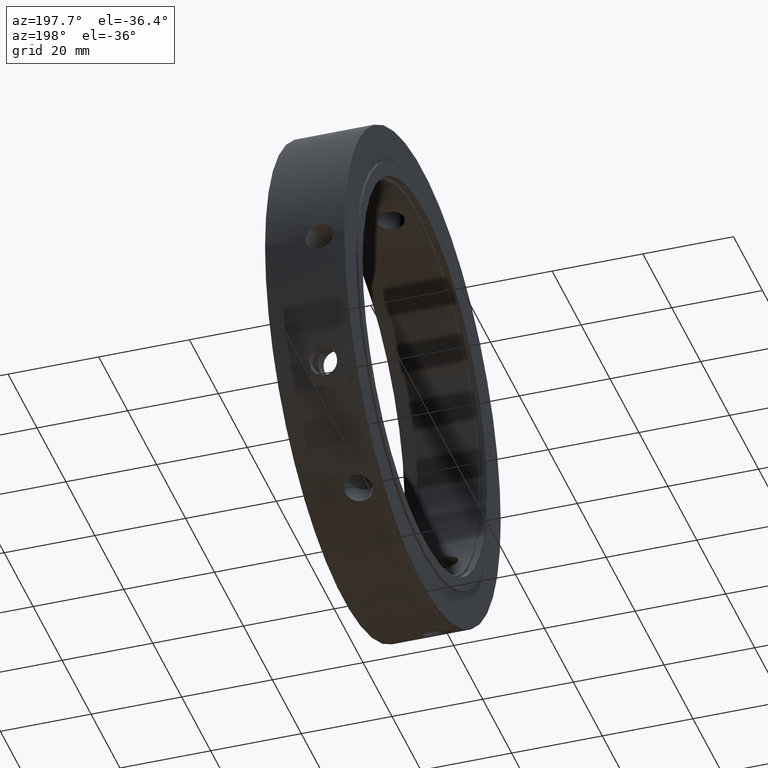
[diagram: clean part render]
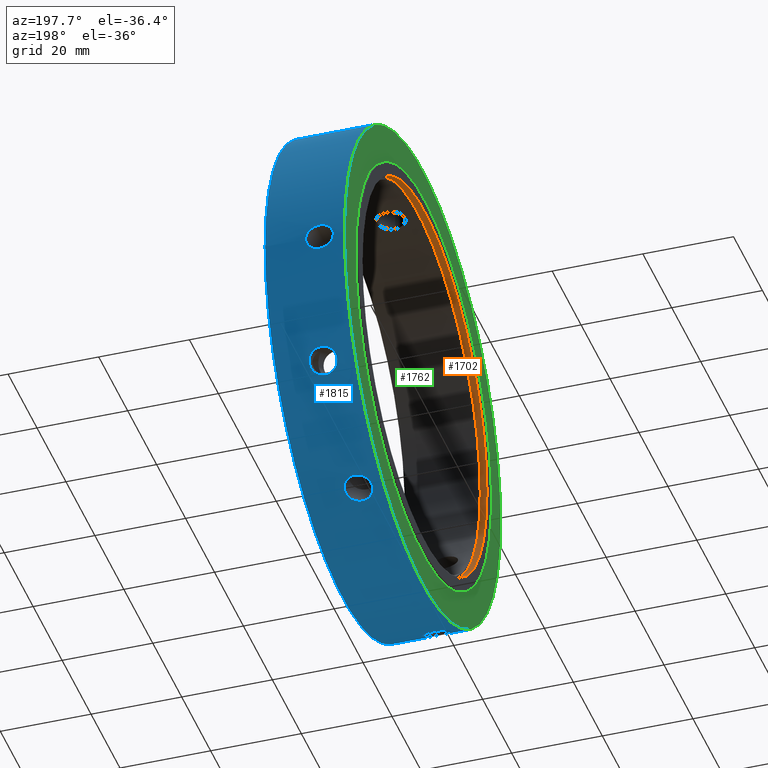
[diagram: same view with three faces highlighted in distinct colors, each labeled with its STEP entity id]
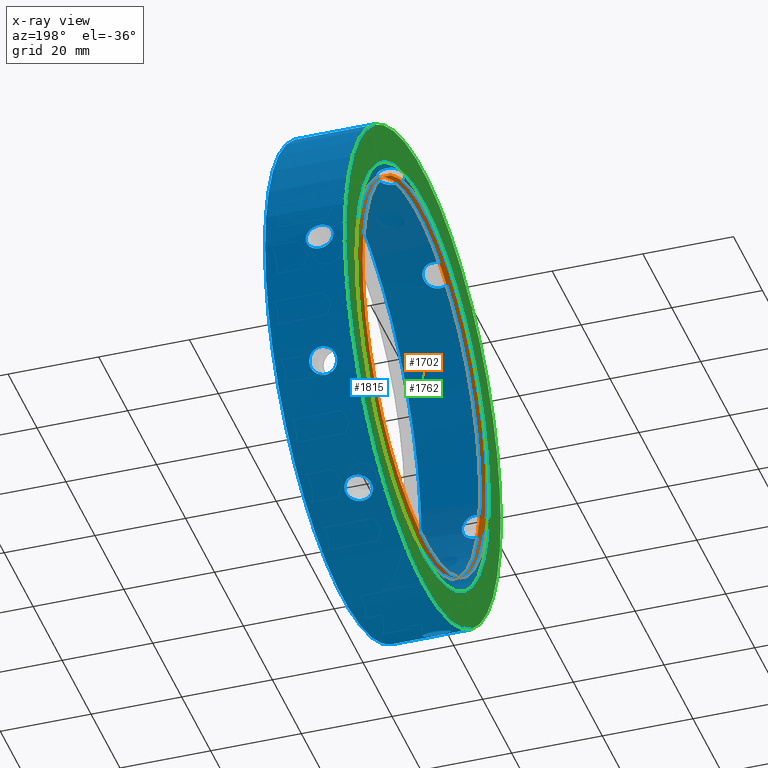
[diagram: x-ray of the same camera — body ghosted, the three highlighted faces saturated]
A machine part, auxiliary view with three faces highlighted in distinct colors.
The next image is the same camera in x-ray (body ghosted, the three faces saturated) — at least one of them is partly hidden behind the body in this view.
Their STEP definitions:

[orange] entity #1702 — the highlighted cylindrical surface (bore or boss wall) has radius 43 mm, axis along (1, 0, 0).
#1660=CARTESIAN_POINT('',(1.499999999999988,43.0,0.0));
#1661=VERTEX_POINT('',#1660);
#1662=CARTESIAN_POINT('',(1.499999999999988,0.0,0.0));
#1663=DIRECTION('',(1.0,0.0,0.0));
#1664=DIRECTION('',(0.0,1.0,0.0));
#1665=AXIS2_PLACEMENT_3D('',#1662,#1663,#1664);
#1666=CIRCLE('',#1665,43.0);
#1667=EDGE_CURVE('',#1661,#1661,#1666,.T.);
#1683=CARTESIAN_POINT('',(0.749999999999988,0.0,0.0));
#1684=DIRECTION('',(1.0,0.0,0.0));
#1685=DIRECTION('',(0.0,1.0,0.0));
#1686=AXIS2_PLACEMENT_3D('',#1683,#1684,#1685);
#1687=CYLINDRICAL_SURFACE('',#1686,43.0);
#1688=CARTESIAN_POINT('',(-1.221245E-014,43.0,0.0));
#1689=VERTEX_POINT('',#1688);
#1690=CARTESIAN_POINT('',(-1.221245E-014,0.0,0.0));
#1691=DIRECTION('',(1.0,0.0,0.0));
#1692=DIRECTION('',(0.0,1.0,0.0));
#1693=AXIS2_PLACEMENT_3D('',#1690,#1691,#1692);
#1694=CIRCLE('',#1693,43.0);
#1695=EDGE_CURVE('',#1689,#1689,#1694,.T.);
#1696=ORIENTED_EDGE('',*,*,#1695,.F.);
#1697=EDGE_LOOP('',(#1696));
#1698=FACE_OUTER_BOUND('',#1697,.T.);
#1699=ORIENTED_EDGE('',*,*,#1667,.T.);
#1700=EDGE_LOOP('',(#1699));
#1701=FACE_BOUND('',#1700,.T.);
#1702=ADVANCED_FACE('',(#1698,#1701),#1687,.F.);

[blue] entity #1815 — the highlighted cylindrical surface (bore or boss wall) has radius 54 mm, axis along (1, 0, 0).
#534=CARTESIAN_POINT('',(2.949999999999986,27.000000000000046,46.76537180435966));
#535=VERTEX_POINT('',#534);
#536=CARTESIAN_POINT('',(9.049999999999985,27.000000000000046,46.76537180435966));
#537=VERTEX_POINT('',#536);
#538=CARTESIAN_POINT('',(2.949999999999986,27.000000000000046,46.76537180435966));
#539=CARTESIAN_POINT('',(2.949999999999986,27.331732920382429,46.573845713477837));
#540=CARTESIAN_POINT('',(3.026569748587527,27.68328216063766,46.365689013395716));
#541=CARTESIAN_POINT('',(3.33785882363115,28.325918588300127,45.975902003140206));
#542=CARTESIAN_POINT('',(3.572573640183091,28.617127802573094,45.794469309906304));
#543=CARTESIAN_POINT('',(4.114075087771311,29.075259816808536,45.504974339959531));
#544=CARTESIAN_POINT('',(4.456985969656983,29.2727643782668,45.377632783046863));
#545=CARTESIAN_POINT('',(5.208418811643451,29.534215774619632,45.207901852997665));
#546=CARTESIAN_POINT('',(5.616947686389779,29.598275949281781,45.16571776059989));
#547=CARTESIAN_POINT('',(6.383052313610191,29.598275949281778,45.16571776059989));
#548=CARTESIAN_POINT('',(6.791581188356518,29.534215774619632,45.207901852997665));
#549=CARTESIAN_POINT('',(7.54301403034299,29.2727643782668,45.377632783046863));
#550=CARTESIAN_POINT('',(7.885924912228659,29.075259816808536,45.504974339959531));
#551=CARTESIAN_POINT('',(8.427426359816879,28.617127802573094,45.794469309906304));
#552=CARTESIAN_POINT('',(8.66214117636882,28.325918588300123,45.97590200314022));
#553=CARTESIAN_POINT('',(8.973430251412445,27.683282160637653,46.365689013395723));
#554=CARTESIAN_POINT('',(9.049999999999985,27.331732920382429,46.573845713477837));
#555=CARTESIAN_POINT('',(9.049999999999985,27.000000000000046,46.76537180435966));
#556=B_SPLINE_CURVE_WITH_KNOTS('',3,(#538,#539,#540,#541,#542,#543,#544,#545,#546,#547,#548,#549,#550,#551,#552,#553,#554,#555),.UNSPECIFIED.,.F.,.U.,(4,2,2,2,2,2,2,2,4),(0.459662697224322,0.57457835175342,0.689494006282519,0.804409700365581,0.919325394448643,1.034241088531705,1.149156782614767,1.264072437143866,1.378988091672964),.UNSPECIFIED.);
#557=EDGE_CURVE('',#535,#537,#556,.T.);
#559=CARTESIAN_POINT('',(9.049999999999985,27.000000000000046,46.765371804359653));
#560=CARTESIAN_POINT('',(9.049999999999985,26.668267079617664,46.956897895241482));
#561=CARTESIAN_POINT('',(8.973430251412445,26.312223469250995,47.157270117942574));
#562=CARTESIAN_POINT('',(8.662141176368824,25.653339802473308,47.518916084567806));
#563=CARTESIAN_POINT('',(8.427426359816883,25.350609873919232,47.680394315327355));
#564=CARTESIAN_POINT('',(7.885924912228663,24.870833868559785,47.932400792968799));
#565=CARTESIAN_POINT('',(7.543014030342988,24.66180056458683,48.039773982098609));
#566=CARTESIAN_POINT('',(6.791581188356522,24.384083569179854,48.181332068170484));
#567=CARTESIAN_POINT('',(6.383052313610191,24.315520986196709,48.215717760599887));
#568=CARTESIAN_POINT('',(5.999999999999986,24.315520986196709,48.215717760599887));
#569=CARTESIAN_POINT('',(5.616947686389779,24.315520986196709,48.215717760599887));
#570=CARTESIAN_POINT('',(5.208418811643448,24.38408356917985,48.181332068170484));
#571=CARTESIAN_POINT('',(4.456985969656981,24.661800564586827,48.039773982098609));
#572=CARTESIAN_POINT('',(4.114075087771311,24.870833868559789,47.932400792968799));
#573=CARTESIAN_POINT('',(3.57257364018309,25.350609873919232,47.680394315327355));
#574=CARTESIAN_POINT('',(3.33785882363115,25.653339802473308,47.518916084567813));
#575=CARTESIAN_POINT('',(3.026569748587527,26.312223469250995,47.157270117942581));
#576=CARTESIAN_POINT('',(2.949999999999986,26.668267079617664,46.956897895241489));
#577=CARTESIAN_POINT('',(2.949999999999986,27.000000000000046,46.76537180435966));
#578=B_SPLINE_CURVE_WITH_KNOTS('',3,(#559,#560,#561,#562,#563,#564,#565,#566,#567,#568,#569,#570,#571,#572,#573,#574,#575,#576,#577),.UNSPECIFIED.,.F.,.U.,(4,2,2,2,3,2,2,2,4),(1.378988091672964,1.493903746202063,1.608819400731162,1.723735094814224,1.838650788897286,1.953566482980348,2.06848217706341,2.183397831592509,2.298313486121608),.UNSPECIFIED.);
#579=EDGE_CURVE('',#537,#535,#578,.T.);
#646=CARTESIAN_POINT('',(2.949999999999986,54.0,-3.597123E-014));
#647=VERTEX_POINT('',#646);
#648=CARTESIAN_POINT('',(9.049999999999985,54.0,-3.108624E-014));
#649=VERTEX_POINT('',#648);
#650=CARTESIAN_POINT('',(2.949999999999986,54.0,-2.838008E-014));
#651=CARTESIAN_POINT('',(2.949999999999986,54.0,-0.383052181763691));
#652=CARTESIAN_POINT('',(3.026569748587529,53.995505629888562,-0.791581104546894));
#653=CARTESIAN_POINT('',(3.337858823631151,53.979258390773339,-1.543014081427626));
#654=CARTESIAN_POINT('',(3.57257364018309,53.967737676492234,-1.885925005421074));
#655=CARTESIAN_POINT('',(4.114075087771311,53.946093685368233,-2.427426453009294));
#656=CARTESIAN_POINT('',(4.456985969656983,53.934564942853534,-2.662141199051786));
#657=CARTESIAN_POINT('',(5.208418811643451,53.91829934379939,-2.973430215172854));
#658=CARTESIAN_POINT('',(5.616947686389779,53.913796935478402,-3.050000000000028));
#659=CARTESIAN_POINT('',(6.383052313610191,53.913796935478402,-3.050000000000028));
#660=CARTESIAN_POINT('',(6.791581188356518,53.918299343799404,-2.973430215172855));
#661=CARTESIAN_POINT('',(7.543014030342986,53.934564942853541,-2.662141199051788));
#662=CARTESIAN_POINT('',(7.885924912228659,53.946093685368233,-2.427426453009294));
#663=CARTESIAN_POINT('',(8.427426359816879,53.967737676492234,-1.885925005421074));
#664=CARTESIAN_POINT('',(8.662141176368818,53.979258390773339,-1.543014081427627));
#665=CARTESIAN_POINT('',(8.973430251412442,53.995505629888562,-0.791581104546896));
#666=CARTESIAN_POINT('',(9.049999999999985,54.0,-0.383052181763692));
#667=CARTESIAN_POINT('',(9.049999999999985,54.0,-2.928213E-014));
#668=B_SPLINE_CURVE_WITH_KNOTS('',3,(#650,#651,#652,#653,#654,#655,#656,#657,#658,#659,#660,#661,#662,#663,#664,#665,#666,#667),.UNSPECIFIED.,.F.,.U.,(4,2,2,2,2,2,2,2,4),(0.459662697224322,0.57457835175342,0.689494006282519,0.804409700365581,0.919325394448643,1.034241088531705,1.149156782614767,1.264072437143866,1.378988091672965),.UNSPECIFIED.);
#669=EDGE_CURVE('',#647,#649,#668,.T.);
#671=CARTESIAN_POINT('',(9.049999999999987,54.0,-2.955969E-014));
#672=CARTESIAN_POINT('',(9.049999999999987,54.0,0.383052181763633));
#673=CARTESIAN_POINT('',(8.973430251412442,53.995505629888562,0.791581104546837));
#674=CARTESIAN_POINT('',(8.66214117636882,53.979258390773339,1.543014081427568));
#675=CARTESIAN_POINT('',(8.427426359816881,53.967737676492234,1.885925005421016));
#676=CARTESIAN_POINT('',(7.88592491222866,53.946093685368233,2.427426453009236));
#677=CARTESIAN_POINT('',(7.543014030342988,53.934564942853534,2.662141199051729));
#678=CARTESIAN_POINT('',(6.791581188356521,53.91829934379939,2.973430215172797));
#679=CARTESIAN_POINT('',(6.383052313610191,53.913796935478402,3.049999999999971));
#680=CARTESIAN_POINT('',(5.999999999999986,53.913796935478402,3.049999999999971));
#681=CARTESIAN_POINT('',(5.616947686389779,53.913796935478402,3.049999999999971));
#682=CARTESIAN_POINT('',(5.208418811643451,53.91829934379939,2.973430215172797));
#683=CARTESIAN_POINT('',(4.456985969656983,53.934564942853534,2.662141199051729));
#684=CARTESIAN_POINT('',(4.114075087771312,53.946093685368233,2.427426453009237));
#685=CARTESIAN_POINT('',(3.572573640183091,53.967737676492227,1.885925005421017));
#686=CARTESIAN_POINT('',(3.337858823631152,53.979258390773339,1.543014081427569));
#687=CARTESIAN_POINT('',(3.026569748587529,53.995505629888562,0.791581104546838));
#688=CARTESIAN_POINT('',(2.949999999999986,54.0,0.383052181763635));
#689=CARTESIAN_POINT('',(2.949999999999986,54.0,-2.831069E-014));
#690=B_SPLINE_CURVE_WITH_KNOTS('',3,(#671,#672,#673,#674,#675,#676,#677,#678,#679,#680,#681,#682,#683,#684,#685,#686,#687,#688,#689),.UNSPECIFIED.,.F.,.U.,(4,2,2,2,3,2,2,2,4),(1.378988091672965,1.493903746202064,1.608819400731163,1.723735094814225,1.838650788897287,1.953566482980349,2.068482177063411,2.183397831592509,2.298313486121608),.UNSPECIFIED.);
#691=EDGE_CURVE('',#649,#647,#690,.T.);
#758=CARTESIAN_POINT('',(2.949999999999986,26.999999999999989,-46.765371804359702));
#759=VERTEX_POINT('',#758);
#760=CARTESIAN_POINT('',(9.049999999999985,26.999999999999993,-46.765371804359702));
#761=VERTEX_POINT('',#760);
#762=CARTESIAN_POINT('',(2.949999999999986,26.999999999999993,-46.765371804359702));
#763=CARTESIAN_POINT('',(2.949999999999986,26.668267079617607,-46.956897895241525));
#764=CARTESIAN_POINT('',(3.026569748587528,26.312223469250942,-47.157270117942609));
#765=CARTESIAN_POINT('',(3.33785882363115,25.653339802473258,-47.518916084567834));
#766=CARTESIAN_POINT('',(3.572573640183091,25.350609873919183,-47.680394315327376));
#767=CARTESIAN_POINT('',(4.11407508777131,24.870833868559735,-47.932400792968821));
#768=CARTESIAN_POINT('',(4.45698596965698,24.66180056458677,-48.039773982098652));
#769=CARTESIAN_POINT('',(5.208418811643451,24.38408356917979,-48.181332068170519));
#770=CARTESIAN_POINT('',(5.616947686389779,24.315520986196653,-48.215717760599915));
#771=CARTESIAN_POINT('',(6.383052313610191,24.315520986196653,-48.215717760599915));
#772=CARTESIAN_POINT('',(6.791581188356517,24.38408356917979,-48.181332068170519));
#773=CARTESIAN_POINT('',(7.543014030342985,24.66180056458677,-48.039773982098652));
#774=CARTESIAN_POINT('',(7.885924912228656,24.870833868559721,-47.932400792968821));
#775=CARTESIAN_POINT('',(8.427426359816879,25.350609873919172,-47.680394315327376));
#776=CARTESIAN_POINT('',(8.662141176368818,25.653339802473248,-47.518916084567842));
#777=CARTESIAN_POINT('',(8.973430251412442,26.312223469250938,-47.157270117942609));
#778=CARTESIAN_POINT('',(9.049999999999985,26.668267079617607,-46.956897895241525));
#779=CARTESIAN_POINT('',(9.049999999999985,26.999999999999989,-46.765371804359702));
#780=B_SPLINE_CURVE_WITH_KNOTS('',3,(#762,#763,#764,#765,#766,#767,#768,#769,#770,#771,#772,#773,#774,#775,#776,#777,#778,#779),.UNSPECIFIED.,.F.,.U.,(4,2,2,2,2,2,2,2,4),(0.459662697224321,0.57457835175342,0.689494006282518,0.80440970036558,0.919325394448642,1.034241088531704,1.149156782614766,1.264072437143865,1.378988091672964),.UNSPECIFIED.);
#781=EDGE_CURVE('',#759,#761,#780,.T.);
#783=CARTESIAN_POINT('',(9.049999999999985,26.999999999999993,-46.765371804359688));
#784=CARTESIAN_POINT('',(9.049999999999985,27.331732920382379,-46.573845713477866));
#785=CARTESIAN_POINT('',(8.973430251412445,27.683282160637603,-46.365689013395759));
#786=CARTESIAN_POINT('',(8.662141176368829,28.32591858830007,-45.975902003140249));
#787=CARTESIAN_POINT('',(8.427426359816879,28.61712780257303,-45.79446930990634));
#788=CARTESIAN_POINT('',(7.88592491222866,29.075259816808483,-45.50497433995956));
#789=CARTESIAN_POINT('',(7.543014030342988,29.27276437826675,-45.377632783046892));
#790=CARTESIAN_POINT('',(6.791581188356519,29.534215774619582,-45.207901852997701));
#791=CARTESIAN_POINT('',(6.383052313610192,29.598275949281732,-45.165717760599918));
#792=CARTESIAN_POINT('',(5.999999999999986,29.598275949281732,-45.165717760599918));
#793=CARTESIAN_POINT('',(5.616947686389779,29.598275949281732,-45.165717760599918));
#794=CARTESIAN_POINT('',(5.208418811643449,29.534215774619589,-45.207901852997701));
#795=CARTESIAN_POINT('',(4.45698596965698,29.272764378266753,-45.377632783046892));
#796=CARTESIAN_POINT('',(4.114075087771312,29.075259816808483,-45.50497433995956));
#797=CARTESIAN_POINT('',(3.572573640183093,28.61712780257303,-45.79446930990634));
#798=CARTESIAN_POINT('',(3.337858823631144,28.32591858830007,-45.975902003140249));
#799=CARTESIAN_POINT('',(3.026569748587526,27.683282160637603,-46.365689013395759));
#800=CARTESIAN_POINT('',(2.949999999999986,27.331732920382379,-46.573845713477873));
#801=CARTESIAN_POINT('',(2.949999999999986,26.999999999999993,-46.765371804359702));
#802=B_SPLINE_CURVE_WITH_KNOTS('',3,(#783,#784,#785,#786,#787,#788,#789,#790,#791,#792,#793,#794,#795,#796,#797,#798,#799,#800,#801),.UNSPECIFIED.,.F.,.U.,(4,2,2,2,3,2,2,2,4),(1.378988091672964,1.493903746202063,1.608819400731161,1.723735094814223,1.838650788897285,1.953566482980347,2.06848217706341,2.183397831592508,2.298313486121606),.UNSPECIFIED.);
#803=EDGE_CURVE('',#761,#759,#802,.T.);
#870=CARTESIAN_POINT('',(2.949999999999986,-27.000000000000021,-46.765371804359681));
#871=VERTEX_POINT('',#870);
#872=CARTESIAN_POINT('',(9.049999999999985,-27.000000000000014,-46.765371804359681));
#873=VERTEX_POINT('',#872);
#874=CARTESIAN_POINT('',(2.949999999999985,-27.000000000000014,-46.765371804359681));
#875=CARTESIAN_POINT('',(2.949999999999985,-27.331732920382397,-46.573845713477851));
#876=CARTESIAN_POINT('',(3.026569748587526,-27.683282160637628,-46.36568901339573));
#877=CARTESIAN_POINT('',(3.337858823631151,-28.325918588300102,-45.975902003140227));
#878=CARTESIAN_POINT('',(3.572573640183089,-28.617127802573066,-45.794469309906312));
#879=CARTESIAN_POINT('',(4.11407508777131,-29.075259816808511,-45.504974339959539));
#880=CARTESIAN_POINT('',(4.45698596965698,-29.272764378266775,-45.37763278304687));
#881=CARTESIAN_POINT('',(5.208418811643449,-29.534215774619611,-45.207901852997672));
#882=CARTESIAN_POINT('',(5.616947686389779,-29.598275949281749,-45.165717760599904));
#883=CARTESIAN_POINT('',(6.383052313610191,-29.598275949281749,-45.165717760599904));
#884=CARTESIAN_POINT('',(6.791581188356522,-29.534215774619611,-45.207901852997679));
#885=CARTESIAN_POINT('',(7.543014030342992,-29.272764378266775,-45.377632783046877));
#886=CARTESIAN_POINT('',(7.885924912228663,-29.075259816808511,-45.504974339959539));
#887=CARTESIAN_POINT('',(8.427426359816881,-28.617127802573066,-45.794469309906312));
#888=CARTESIAN_POINT('',(8.662141176368818,-28.325918588300102,-45.975902003140234));
#889=CARTESIAN_POINT('',(8.973430251412445,-27.683282160637624,-46.365689013395738));
#890=CARTESIAN_POINT('',(9.049999999999985,-27.331732920382407,-46.573845713477844));
#891=CARTESIAN_POINT('',(9.049999999999985,-27.000000000000021,-46.765371804359674));
#892=B_SPLINE_CURVE_WITH_KNOTS('',3,(#874,#875,#876,#877,#878,#879,#880,#881,#882,#883,#884,#885,#886,#887,#888,#889,#890,#891),.UNSPECIFIED.,.F.,.U.,(4,2,2,2,2,2,2,2,4),(0.459662697224321,0.57457835175342,0.689494006282519,0.804409700365581,0.919325394448643,1.034241088531705,1.149156782614767,1.264072437143866,1.378988091672964),.UNSPECIFIED.);
#893=EDGE_CURVE('',#871,#873,#892,.T.);
#895=CARTESIAN_POINT('',(9.049999999999985,-27.000000000000014,-46.765371804359681));
#896=CARTESIAN_POINT('',(9.049999999999985,-26.668267079617635,-46.956897895241511));
#897=CARTESIAN_POINT('',(8.973430251412443,-26.312223469250966,-47.157270117942588));
#898=CARTESIAN_POINT('',(8.662141176368822,-25.653339802473283,-47.518916084567813));
#899=CARTESIAN_POINT('',(8.427426359816879,-25.350609873919208,-47.680394315327355));
#900=CARTESIAN_POINT('',(7.885924912228662,-24.870833868559757,-47.932400792968799));
#901=CARTESIAN_POINT('',(7.543014030342987,-24.661800564586809,-48.039773982098637));
#902=CARTESIAN_POINT('',(6.791581188356519,-24.384083569179825,-48.181332068170512));
#903=CARTESIAN_POINT('',(6.383052313610191,-24.315520986196685,-48.215717760599901));
#904=CARTESIAN_POINT('',(5.999999999999986,-24.315520986196685,-48.215717760599901));
#905=CARTESIAN_POINT('',(5.616947686389779,-24.315520986196685,-48.215717760599901));
#906=CARTESIAN_POINT('',(5.208418811643448,-24.384083569179822,-48.181332068170505));
#907=CARTESIAN_POINT('',(4.456985969656979,-24.661800564586798,-48.03977398209863));
#908=CARTESIAN_POINT('',(4.114075087771311,-24.870833868559764,-47.932400792968799));
#909=CARTESIAN_POINT('',(3.572573640183092,-25.350609873919208,-47.680394315327355));
#910=CARTESIAN_POINT('',(3.337858823631148,-25.653339802473283,-47.518916084567813));
#911=CARTESIAN_POINT('',(3.026569748587527,-26.312223469250966,-47.157270117942588));
#912=CARTESIAN_POINT('',(2.949999999999986,-26.668267079617635,-46.956897895241511));
#913=CARTESIAN_POINT('',(2.949999999999986,-27.000000000000014,-46.765371804359681));
#914=B_SPLINE_CURVE_WITH_KNOTS('',3,(#895,#896,#897,#898,#899,#900,#901,#902,#903,#904,#905,#906,#907,#908,#909,#910,#911,#912,#913),.UNSPECIFIED.,.F.,.U.,(4,2,2,2,3,2,2,2,4),(1.378988091672964,1.493903746202063,1.608819400731162,1.723735094814224,1.838650788897286,1.953566482980348,2.06848217706341,2.183397831592508,2.298313486121607),.UNSPECIFIED.);
#915=EDGE_CURVE('',#873,#871,#914,.T.);
#982=CARTESIAN_POINT('',(2.949999999999986,-54.0,1.498801E-014));
#983=VERTEX_POINT('',#982);
#984=CARTESIAN_POINT('',(9.049999999999985,-54.0,8.881784E-015));
#985=VERTEX_POINT('',#984);
#986=CARTESIAN_POINT('',(2.949999999999986,-54.0,9.089951E-015));
#987=CARTESIAN_POINT('',(2.949999999999986,-54.0,0.383052181763672));
#988=CARTESIAN_POINT('',(3.026569748587529,-53.995505629888562,0.791581104546875));
#989=CARTESIAN_POINT('',(3.337858823631151,-53.979258390773339,1.543014081427607));
#990=CARTESIAN_POINT('',(3.572573640183091,-53.967737676492234,1.885925005421055));
#991=CARTESIAN_POINT('',(4.114075087771311,-53.946093685368233,2.427426453009275));
#992=CARTESIAN_POINT('',(4.456985969656983,-53.934564942853534,2.662141199051767));
#993=CARTESIAN_POINT('',(5.208418811643451,-53.91829934379939,2.973430215172835));
#994=CARTESIAN_POINT('',(5.616947686389779,-53.913796935478402,3.05000000000001));
#995=CARTESIAN_POINT('',(6.383052313610191,-53.913796935478402,3.05000000000001));
#996=CARTESIAN_POINT('',(6.791581188356518,-53.91829934379939,2.973430215172836));
#997=CARTESIAN_POINT('',(7.543014030342986,-53.934564942853534,2.662141199051767));
#998=CARTESIAN_POINT('',(7.885924912228659,-53.946093685368233,2.427426453009276));
#999=CARTESIAN_POINT('',(8.427426359816879,-53.967737676492234,1.885925005421055));
#1000=CARTESIAN_POINT('',(8.662141176368818,-53.979258390773339,1.543014081427608));
#1001=CARTESIAN_POINT('',(8.973430251412442,-53.995505629888562,0.791581104546877));
#1002=CARTESIAN_POINT('',(9.049999999999985,-54.0,0.383052181763673));
#1003=CARTESIAN_POINT('',(9.049999999999985,-54.0,1.006140E-014));
#1004=B_SPLINE_CURVE_WITH_KNOTS('',3,(#986,#987,#988,#989,#990,#991,#992,#993,#994,#995,#996,#997,#998,#999,#1000,#1001,#1002,#1003),.UNSPECIFIED.,.F.,.U.,(4,2,2,2,2,2,2,2,4),(0.459662697224322,0.57457835175342,0.689494006282519,0.804409700365581,0.919325394448643,1.034241088531705,1.149156782614767,1.264072437143866,1.378988091672965),.UNSPECIFIED.);
#1005=EDGE_CURVE('',#983,#985,#1004,.T.);
#1007=CARTESIAN_POINT('',(9.049999999999987,-54.0,1.047773E-014));
#1008=CARTESIAN_POINT('',(9.049999999999987,-54.0,-0.383052181763652));
#1009=CARTESIAN_POINT('',(8.973430251412442,-53.995505629888562,-0.791581104546855));
#1010=CARTESIAN_POINT('',(8.66214117636882,-53.979258390773339,-1.543014081427587));
#1011=CARTESIAN_POINT('',(8.427426359816881,-53.967737676492234,-1.885925005421035));
#1012=CARTESIAN_POINT('',(7.88592491222866,-53.946093685368233,-2.427426453009256));
#1013=CARTESIAN_POINT('',(7.543014030342988,-53.934564942853534,-2.662141199051748));
#1014=CARTESIAN_POINT('',(6.791581188356521,-53.91829934379939,-2.973430215172816));
#1015=CARTESIAN_POINT('',(6.383052313610191,-53.913796935478402,-3.049999999999991));
#1016=CARTESIAN_POINT('',(5.999999999999986,-53.913796935478402,-3.049999999999991));
#1017=CARTESIAN_POINT('',(5.616947686389779,-53.913796935478402,-3.049999999999991));
#1018=CARTESIAN_POINT('',(5.208418811643451,-53.91829934379939,-2.973430215172816));
#1019=CARTESIAN_POINT('',(4.456985969656983,-53.934564942853534,-2.662141199051748));
#1020=CARTESIAN_POINT('',(4.114075087771312,-53.946093685368233,-2.427426453009256));
#1021=CARTESIAN_POINT('',(3.572573640183091,-53.967737676492227,-1.885925005421036));
#1022=CARTESIAN_POINT('',(3.337858823631152,-53.979258390773339,-1.543014081427588));
#1023=CARTESIAN_POINT('',(3.026569748587529,-53.995505629888562,-0.791581104546857));
#1024=CARTESIAN_POINT('',(2.949999999999986,-54.0,-0.383052181763654));
#1025=CARTESIAN_POINT('',(2.949999999999986,-54.0,9.228729E-015));
#1026=B_SPLINE_CURVE_WITH_KNOTS('',3,(#1007,#1008,#1009,#1010,#1011,#1012,#1013,#1014,#1015,#1016,#1017,#1018,#1019,#1020,#1021,#1022,#1023,#1024,#1025),.UNSPECIFIED.,.F.,.U.,(4,2,2,2,3,2,2,2,4),(1.378988091672965,1.493903746202064,1.608819400731163,1.723735094814225,1.838650788897287,1.953566482980349,2.068482177063411,2.183397831592509,2.298313486121608),.UNSPECIFIED.);
#1027=EDGE_CURVE('',#985,#983,#1026,.T.);
#1131=CARTESIAN_POINT('',(2.949999999999986,-26.999999999999996,46.765371804359688));
#1132=VERTEX_POINT('',#1131);
#1133=CARTESIAN_POINT('',(9.049999999999985,-26.999999999999996,46.765371804359688));
#1134=VERTEX_POINT('',#1133);
#1135=CARTESIAN_POINT('',(2.949999999999986,-27.000000000000007,46.765371804359681));
#1136=CARTESIAN_POINT('',(2.949999999999986,-26.668267079617621,46.956897895241518));
#1137=CARTESIAN_POINT('',(3.026569748587529,-26.312223469250945,47.157270117942602));
#1138=CARTESIAN_POINT('',(3.337858823631152,-25.653339802473258,47.518916084567834));
#1139=CARTESIAN_POINT('',(3.57257364018309,-25.350609873919183,47.680394315327376));
#1140=CARTESIAN_POINT('',(4.114075087771311,-24.870833868559743,47.932400792968821));
#1141=CARTESIAN_POINT('',(4.456985969656983,-24.661800564586777,48.039773982098652));
#1142=CARTESIAN_POINT('',(5.208418811643453,-24.384083569179801,48.181332068170519));
#1143=CARTESIAN_POINT('',(5.616947686389779,-24.31552098619666,48.215717760599915));
#1144=CARTESIAN_POINT('',(6.383052313610191,-24.31552098619666,48.215717760599915));
#1145=CARTESIAN_POINT('',(6.791581188356515,-24.384083569179801,48.181332068170519));
#1146=CARTESIAN_POINT('',(7.543014030342983,-24.661800564586777,48.039773982098652));
#1147=CARTESIAN_POINT('',(7.885924912228656,-24.870833868559735,47.932400792968821));
#1148=CARTESIAN_POINT('',(8.427426359816879,-25.350609873919183,47.680394315327376));
#1149=CARTESIAN_POINT('',(8.66214117636882,-25.653339802473258,47.518916084567834));
#1150=CARTESIAN_POINT('',(8.973430251412442,-26.312223469250945,47.157270117942602));
#1151=CARTESIAN_POINT('',(9.049999999999985,-26.66826707961761,46.956897895241525));
#1152=CARTESIAN_POINT('',(9.049999999999983,-27.0,46.765371804359688));
#1153=B_SPLINE_CURVE_WITH_KNOTS('',3,(#1135,#1136,#1137,#1138,#1139,#1140,#1141,#1142,#1143,#1144,#1145,#1146,#1147,#1148,#1149,#1150,#1151,#1152),.UNSPECIFIED.,.F.,.U.,(4,2,2,2,2,2,2,2,4),(0.459662697224321,0.57457835175342,0.689494006282519,0.804409700365581,0.919325394448643,1.034241088531705,1.149156782614766,1.264072437143866,1.378988091672965),.UNSPECIFIED.);
#1154=EDGE_CURVE('',#1132,#1134,#1153,.T.);
#1156=CARTESIAN_POINT('',(9.049999999999985,-27.0,46.765371804359688));
#1157=CARTESIAN_POINT('',(9.049999999999983,-27.331732920382386,46.573845713477866));
#1158=CARTESIAN_POINT('',(8.973430251412442,-27.683282160637606,46.365689013395752));
#1159=CARTESIAN_POINT('',(8.662141176368822,-28.325918588300073,45.975902003140241));
#1160=CARTESIAN_POINT('',(8.427426359816879,-28.617127802573048,45.79446930990634));
#1161=CARTESIAN_POINT('',(7.885924912228662,-29.07525981680849,45.504974339959567));
#1162=CARTESIAN_POINT('',(7.543014030342995,-29.272764378266753,45.377632783046892));
#1163=CARTESIAN_POINT('',(6.791581188356524,-29.534215774619593,45.207901852997701));
#1164=CARTESIAN_POINT('',(6.383052313610192,-29.598275949281742,45.165717760599918));
#1165=CARTESIAN_POINT('',(5.999999999999986,-29.598275949281742,45.165717760599918));
#1166=CARTESIAN_POINT('',(5.616947686389779,-29.598275949281742,45.165717760599918));
#1167=CARTESIAN_POINT('',(5.208418811643448,-29.534215774619593,45.207901852997701));
#1168=CARTESIAN_POINT('',(4.456985969656977,-29.272764378266753,45.377632783046892));
#1169=CARTESIAN_POINT('',(4.114075087771311,-29.07525981680849,45.504974339959567));
#1170=CARTESIAN_POINT('',(3.572573640183091,-28.617127802573048,45.79446930990634));
#1171=CARTESIAN_POINT('',(3.337858823631149,-28.325918588300084,45.975902003140234));
#1172=CARTESIAN_POINT('',(3.026569748587529,-27.683282160637614,46.365689013395738));
#1173=CARTESIAN_POINT('',(2.949999999999986,-27.331732920382386,46.573845713477851));
#1174=CARTESIAN_POINT('',(2.949999999999986,-27.0,46.765371804359688));
#1175=B_SPLINE_CURVE_WITH_KNOTS('',3,(#1156,#1157,#1158,#1159,#1160,#1161,#1162,#1163,#1164,#1165,#1166,#1167,#1168,#1169,#1170,#1171,#1172,#1173,#1174),.UNSPECIFIED.,.F.,.U.,(4,2,2,2,3,2,2,2,4),(1.378988091672965,1.493903746202063,1.608819400731162,1.723735094814224,1.838650788897286,1.953566482980348,2.06848217706341,2.183397831592508,2.298313486121607),.UNSPECIFIED.);
#1176=EDGE_CURVE('',#1134,#1132,#1175,.T.);
#1255=CARTESIAN_POINT('',(7.499999999999987,48.215717760599901,-24.315520986196688));
#1256=VERTEX_POINT('',#1255);
#1257=CARTESIAN_POINT('',(7.499999999999988,48.215717760599901,-24.315520986196685));
#1258=CARTESIAN_POINT('',(7.116947686389782,48.215717760599901,-24.315520986196685));
#1259=CARTESIAN_POINT('',(6.708418811643451,48.181332068170505,-24.384083569179825));
#1260=CARTESIAN_POINT('',(5.956985969656983,48.03977398209863,-24.661800564586812));
#1261=CARTESIAN_POINT('',(5.614075087771314,47.932400792968799,-24.870833868559767));
#1262=CARTESIAN_POINT('',(5.072573640183093,47.680394315327355,-25.350609873919208));
#1263=CARTESIAN_POINT('',(4.837858823631148,47.518916084567813,-25.65333980247329));
#1264=CARTESIAN_POINT('',(4.526569748587528,47.157270117942581,-26.312223469250977));
#1265=CARTESIAN_POINT('',(4.449999999999986,46.956897895241511,-26.668267079617639));
#1266=CARTESIAN_POINT('',(4.449999999999987,46.573845713477837,-27.331732920382407));
#1267=CARTESIAN_POINT('',(4.526569748587531,46.365689013395723,-27.683282160637642));
#1268=CARTESIAN_POINT('',(4.837858823631152,45.97590200314022,-28.325918588300105));
#1269=CARTESIAN_POINT('',(5.072573640183093,45.794469309906319,-28.617127802573066));
#1270=CARTESIAN_POINT('',(5.614075087771311,45.504974339959539,-29.075259816808515));
#1271=CARTESIAN_POINT('',(5.956985969656982,45.37763278304687,-29.272764378266778));
#1272=CARTESIAN_POINT('',(6.708418811643448,45.207901852997672,-29.534215774619614));
#1273=CARTESIAN_POINT('',(7.116947686389779,45.165717760599904,-29.598275949281764));
#1274=CARTESIAN_POINT('',(7.883052313610193,45.165717760599904,-29.598275949281756));
#1275=CARTESIAN_POINT('',(8.291581188356522,45.207901852997672,-29.534215774619614));
#1276=CARTESIAN_POINT('',(9.043014030342992,45.37763278304687,-29.272764378266778));
#1277=CARTESIAN_POINT('',(9.38592491222866,45.504974339959539,-29.075259816808511));
#1278=CARTESIAN_POINT('',(9.927426359816877,45.794469309906319,-28.617127802573066));
#1279=CARTESIAN_POINT('',(10.16214117636882,45.97590200314022,-28.325918588300102));
#1280=CARTESIAN_POINT('',(10.473430251412442,46.365689013395723,-27.683282160637638));
#1281=CARTESIAN_POINT('',(10.549999999999983,46.573845713477837,-27.331732920382407));
#1282=CARTESIAN_POINT('',(10.549999999999988,46.956897895241511,-26.668267079617639));
#1283=CARTESIAN_POINT('',(10.473430251412449,47.157270117942588,-26.312223469250974));
#1284=CARTESIAN_POINT('',(10.162141176368824,47.51891608456782,-25.653339802473283));
#1285=CARTESIAN_POINT('',(9.927426359816883,47.680394315327355,-25.350609873919208));
#1286=CARTESIAN_POINT('',(9.385924912228665,47.932400792968799,-24.870833868559767));
#1287=CARTESIAN_POINT('',(9.043014030342993,48.03977398209863,-24.661800564586812));
#1288=CARTESIAN_POINT('',(8.291581188356524,48.181332068170505,-24.384083569179825));
#1289=CARTESIAN_POINT('',(7.883052313610196,48.215717760599901,-24.315520986196685));
#1290=CARTESIAN_POINT('',(7.499999999999988,48.215717760599901,-24.315520986196685));
#1291=B_SPLINE_CURVE_WITH_KNOTS('',3,(#1257,#1258,#1259,#1260,#1261,#1262,#1263,#1264,#1265,#1266,#1267,#1268,#1269,#1270,#1271,#1272,#1273,#1274,#1275,#1276,#1277,#1278,#1279,#1280,#1281,#1282,#1283,#1284,#1285,#1286,#1287,#1288,#1289,#1290),.UNSPECIFIED.,.T.,.U.,(4,2,2,2,2,2,2,2,2,2,2,2,2,2,2,2,4),(0.0,0.114915694083062,0.229831388166124,0.344747042695223,0.459662697224322,0.57457835175342,0.689494006282518,0.804409700365581,0.919325394448643,1.034241088531705,1.149156782614767,1.264072437143865,1.378988091672964,1.493903746202062,1.608819400731161,1.723735094814223,1.838650788897286),.UNSPECIFIED.);
#1292=EDGE_CURVE('',#1256,#1256,#1291,.T.);
#1412=CARTESIAN_POINT('',(7.499999999999987,-45.165717760599918,-29.598275949281732));
#1413=VERTEX_POINT('',#1412);
#1414=CARTESIAN_POINT('',(7.499999999999987,-45.165717760599911,-29.598275949281728));
#1415=CARTESIAN_POINT('',(7.11694768638978,-45.165717760599911,-29.598275949281728));
#1416=CARTESIAN_POINT('',(6.708418811643451,-45.207901852997693,-29.534215774619582));
#1417=CARTESIAN_POINT('',(5.956985969656983,-45.377632783046884,-29.27276437826675));
#1418=CARTESIAN_POINT('',(5.614075087771314,-45.504974339959546,-29.075259816808483));
#1419=CARTESIAN_POINT('',(5.072573640183093,-45.794469309906319,-28.61712780257303));
#1420=CARTESIAN_POINT('',(4.837858823631151,-45.975902003140241,-28.32591858830007));
#1421=CARTESIAN_POINT('',(4.526569748587531,-46.365689013395752,-27.683282160637596));
#1422=CARTESIAN_POINT('',(4.449999999999987,-46.573845713477873,-27.331732920382379));
#1423=CARTESIAN_POINT('',(4.449999999999987,-46.956897895241525,-26.668267079617607));
#1424=CARTESIAN_POINT('',(4.526569748587532,-47.157270117942609,-26.312223469250942));
#1425=CARTESIAN_POINT('',(4.837858823631152,-47.518916084567834,-25.653339802473255));
#1426=CARTESIAN_POINT('',(5.072573640183093,-47.680394315327362,-25.350609873919183));
#1427=CARTESIAN_POINT('',(5.614075087771311,-47.932400792968807,-24.870833868559732));
#1428=CARTESIAN_POINT('',(5.956985969656984,-48.039773982098652,-24.661800564586777));
#1429=CARTESIAN_POINT('',(6.708418811643455,-48.181332068170519,-24.384083569179801));
#1430=CARTESIAN_POINT('',(7.116947686389779,-48.215717760599915,-24.315520986196653));
#1431=CARTESIAN_POINT('',(7.883052313610195,-48.215717760599915,-24.315520986196653));
#1432=CARTESIAN_POINT('',(8.291581188356521,-48.181332068170519,-24.384083569179801));
#1433=CARTESIAN_POINT('',(9.04301403034299,-48.039773982098652,-24.661800564586777));
#1434=CARTESIAN_POINT('',(9.385924912228662,-47.932400792968807,-24.870833868559732));
#1435=CARTESIAN_POINT('',(9.927426359816879,-47.680394315327362,-25.350609873919183));
#1436=CARTESIAN_POINT('',(10.162141176368822,-47.518916084567834,-25.653339802473255));
#1437=CARTESIAN_POINT('',(10.473430251412442,-47.157270117942609,-26.312223469250942));
#1438=CARTESIAN_POINT('',(10.549999999999986,-46.956897895241525,-26.668267079617607));
#1439=CARTESIAN_POINT('',(10.549999999999983,-46.573845713477873,-27.331732920382379));
#1440=CARTESIAN_POINT('',(10.473430251412445,-46.365689013395752,-27.683282160637606));
#1441=CARTESIAN_POINT('',(10.162141176368824,-45.975902003140241,-28.325918588300073));
#1442=CARTESIAN_POINT('',(9.927426359816883,-45.794469309906319,-28.61712780257303));
#1443=CARTESIAN_POINT('',(9.385924912228665,-45.504974339959546,-29.075259816808483));
#1444=CARTESIAN_POINT('',(9.043014030342993,-45.377632783046884,-29.272764378266743));
#1445=CARTESIAN_POINT('',(8.291581188356524,-45.207901852997693,-29.534215774619582));
#1446=CARTESIAN_POINT('',(7.883052313610193,-45.165717760599911,-29.598275949281732));
#1447=CARTESIAN_POINT('',(7.499999999999987,-45.165717760599911,-29.598275949281732));
#1448=B_SPLINE_CURVE_WITH_KNOTS('',3,(#1414,#1415,#1416,#1417,#1418,#1419,#1420,#1421,#1422,#1423,#1424,#1425,#1426,#1427,#1428,#1429,#1430,#1431,#1432,#1433,#1434,#1435,#1436,#1437,#1438,#1439,#1440,#1441,#1442,#1443,#1444,#1445,#1446,#1447),.UNSPECIFIED.,.T.,.U.,(4,2,2,2,2,2,2,2,2,2,2,2,2,2,2,2,4),(0.0,0.114915694083062,0.229831388166124,0.344747042695223,0.459662697224322,0.57457835175342,0.689494006282519,0.804409700365581,0.919325394448643,1.034241088531705,1.149156782614767,1.264072437143866,1.378988091672964,1.493903746202063,1.608819400731162,1.723735094814224,1.838650788897286),.UNSPECIFIED.);
#1449=EDGE_CURVE('',#1413,#1413,#1448,.T.);
#1569=CARTESIAN_POINT('',(7.499999999999987,-3.05,53.913796935478402));
#1570=VERTEX_POINT('',#1569);
#1571=CARTESIAN_POINT('',(7.499999999999987,-3.05,53.913796935478402));
#1572=CARTESIAN_POINT('',(7.11694768638978,-3.05,53.913796935478402));
#1573=CARTESIAN_POINT('',(6.708418811643453,-2.973430215172826,53.918299343799404));
#1574=CARTESIAN_POINT('',(5.956985969656985,-2.662141199051758,53.934564942853541));
#1575=CARTESIAN_POINT('',(5.614075087771314,-2.427426453009265,53.946093685368233));
#1576=CARTESIAN_POINT('',(5.072573640183093,-1.885925005421046,53.967737676492227));
#1577=CARTESIAN_POINT('',(4.837858823631153,-1.543014081427598,53.979258390773339));
#1578=CARTESIAN_POINT('',(4.526569748587531,-0.791581104546866,53.995505629888562));
#1579=CARTESIAN_POINT('',(4.449999999999986,-0.383052181763663,54.0));
#1580=CARTESIAN_POINT('',(4.449999999999987,0.383052181763663,54.0));
#1581=CARTESIAN_POINT('',(4.526569748587531,0.791581104546866,53.995505629888562));
#1582=CARTESIAN_POINT('',(4.837858823631153,1.543014081427597,53.979258390773339));
#1583=CARTESIAN_POINT('',(5.072573640183091,1.885925005421045,53.967737676492234));
#1584=CARTESIAN_POINT('',(5.614075087771312,2.427426453009265,53.946093685368233));
#1585=CARTESIAN_POINT('',(5.956985969656985,2.662141199051757,53.934564942853541));
#1586=CARTESIAN_POINT('',(6.708418811643453,2.973430215172825,53.918299343799404));
#1587=CARTESIAN_POINT('',(7.11694768638978,3.05,53.913796935478402));
#1588=CARTESIAN_POINT('',(7.883052313610194,3.05,53.913796935478402));
#1589=CARTESIAN_POINT('',(8.291581188356521,2.973430215172826,53.918299343799404));
#1590=CARTESIAN_POINT('',(9.043014030342988,2.662141199051758,53.934564942853541));
#1591=CARTESIAN_POINT('',(9.38592491222866,2.427426453009265,53.946093685368233));
#1592=CARTESIAN_POINT('',(9.927426359816881,1.885925005421046,53.967737676492234));
#1593=CARTESIAN_POINT('',(10.16214117636882,1.543014081427598,53.979258390773339));
#1594=CARTESIAN_POINT('',(10.473430251412442,0.791581104546866,53.995505629888562));
#1595=CARTESIAN_POINT('',(10.549999999999986,0.383052181763663,54.0));
#1596=CARTESIAN_POINT('',(10.549999999999986,-0.383052181763662,54.0));
#1597=CARTESIAN_POINT('',(10.473430251412443,-0.791581104546865,53.995505629888562));
#1598=CARTESIAN_POINT('',(10.162141176368822,-1.543014081427597,53.979258390773339));
#1599=CARTESIAN_POINT('',(9.927426359816883,-1.885925005421045,53.967737676492234));
#1600=CARTESIAN_POINT('',(9.385924912228662,-2.427426453009265,53.946093685368233));
#1601=CARTESIAN_POINT('',(9.043014030342988,-2.662141199051757,53.934564942853541));
#1602=CARTESIAN_POINT('',(8.291581188356521,-2.973430215172825,53.918299343799404));
#1603=CARTESIAN_POINT('',(7.883052313610193,-3.05,53.913796935478402));
#1604=CARTESIAN_POINT('',(7.499999999999987,-3.05,53.913796935478402));
#1605=B_SPLINE_CURVE_WITH_KNOTS('',3,(#1571,#1572,#1573,#1574,#1575,#1576,#1577,#1578,#1579,#1580,#1581,#1582,#1583,#1584,#1585,#1586,#1587,#1588,#1589,#1590,#1591,#1592,#1593,#1594,#1595,#1596,#1597,#1598,#1599,#1600,#1601,#1602,#1603,#1604),.UNSPECIFIED.,.T.,.U.,(4,2,2,2,2,2,2,2,2,2,2,2,2,2,2,2,4),(0.0,0.114915694083062,0.229831388166124,0.344747042695223,0.459662697224322,0.57457835175342,0.689494006282519,0.804409700365581,0.919325394448643,1.034241088531705,1.149156782614767,1.264072437143866,1.378988091672965,1.493903746202064,1.608819400731162,1.723735094814224,1.838650788897286),.UNSPECIFIED.);
#1606=EDGE_CURVE('',#1570,#1570,#1605,.T.);
#1748=CARTESIAN_POINT('',(0.499999999999985,54.0,0.0));
#1749=VERTEX_POINT('',#1748);
#1750=CARTESIAN_POINT('',(0.499999999999985,0.0,0.0));
#1751=DIRECTION('',(1.0,0.0,0.0));
#1752=DIRECTION('',(0.0,1.0,0.0));
#1753=AXIS2_PLACEMENT_3D('',#1750,#1751,#1752);
#1754=CIRCLE('',#1753,54.0);
#1755=EDGE_CURVE('',#1749,#1749,#1754,.T.);
#1763=CARTESIAN_POINT('',(9.249999999999986,0.0,0.0));
#1764=DIRECTION('',(1.0,0.0,0.0));
#1765=DIRECTION('',(0.0,1.0,0.0));
#1766=AXIS2_PLACEMENT_3D('',#1763,#1764,#1765);
#1767=CYLINDRICAL_SURFACE('',#1766,54.0);
#1768=CARTESIAN_POINT('',(17.999999999999986,54.0,0.0));
#1769=VERTEX_POINT('',#1768);
#1770=CARTESIAN_POINT('',(17.999999999999986,0.0,0.0));
#1771=DIRECTION('',(1.0,0.0,0.0));
#1772=DIRECTION('',(0.0,1.0,0.0));
#1773=AXIS2_PLACEMENT_3D('',#1770,#1771,#1772);
#1774=CIRCLE('',#1773,54.0);
#1775=EDGE_CURVE('',#1769,#1769,#1774,.T.);
#1776=ORIENTED_EDGE('',*,*,#1775,.F.);
#1777=EDGE_LOOP('',(#1776));
#1778=FACE_OUTER_BOUND('',#1777,.T.);
#1779=ORIENTED_EDGE('',*,*,#557,.T.);
#1780=ORIENTED_EDGE('',*,*,#579,.T.);
#1781=EDGE_LOOP('',(#1779,#1780));
#1782=FACE_BOUND('',#1781,.T.);
#1783=ORIENTED_EDGE('',*,*,#669,.T.);
#1784=ORIENTED_EDGE('',*,*,#691,.T.);
#1785=EDGE_LOOP('',(#1783,#1784));
#1786=FACE_BOUND('',#1785,.T.);
#1787=ORIENTED_EDGE('',*,*,#781,.T.);
#1788=ORIENTED_EDGE('',*,*,#803,.T.);
#1789=EDGE_LOOP('',(#1787,#1788));
#1790=FACE_BOUND('',#1789,.T.);
#1791=ORIENTED_EDGE('',*,*,#893,.T.);
#1792=ORIENTED_EDGE('',*,*,#915,.T.);
#1793=EDGE_LOOP('',(#1791,#1792));
#1794=FACE_BOUND('',#1793,.T.);
#1795=ORIENTED_EDGE('',*,*,#1005,.T.);
#1796=ORIENTED_EDGE('',*,*,#1027,.T.);
#1797=EDGE_LOOP('',(#1795,#1796));
#1798=FACE_BOUND('',#1797,.T.);
#1799=ORIENTED_EDGE('',*,*,#1154,.T.);
#1800=ORIENTED_EDGE('',*,*,#1176,.T.);
#1801=EDGE_LOOP('',(#1799,#1800));
#1802=FACE_BOUND('',#1801,.T.);
#1803=ORIENTED_EDGE('',*,*,#1292,.T.);
#1804=EDGE_LOOP('',(#1803));
#1805=FACE_BOUND('',#1804,.T.);
#1806=ORIENTED_EDGE('',*,*,#1449,.T.);
#1807=EDGE_LOOP('',(#1806));
#1808=FACE_BOUND('',#1807,.T.);
#1809=ORIENTED_EDGE('',*,*,#1606,.T.);
#1810=EDGE_LOOP('',(#1809));
#1811=FACE_BOUND('',#1810,.T.);
#1812=ORIENTED_EDGE('',*,*,#1755,.T.);
#1813=EDGE_LOOP('',(#1812));
#1814=FACE_BOUND('',#1813,.T.);
#1815=ADVANCED_FACE('',(#1778,#1782,#1786,#1790,#1794,#1798,#1802,#1805,#1808,#1811,#1814),#1767,.T.);

[green] entity #1762 — the highlighted planar face has unit normal (-1, 0, 0).
#1728=CARTESIAN_POINT('',(0.499999999999989,46.000000000000007,0.0));
#1729=VERTEX_POINT('',#1728);
#1730=CARTESIAN_POINT('',(0.499999999999989,0.0,0.0));
#1731=DIRECTION('',(1.0,0.0,0.0));
#1732=DIRECTION('',(0.0,1.0,0.0));
#1733=AXIS2_PLACEMENT_3D('',#1730,#1731,#1732);
#1734=CIRCLE('',#1733,46.000000000000007);
#1735=EDGE_CURVE('',#1729,#1729,#1734,.T.);
#1743=CARTESIAN_POINT('',(0.499999999999987,50.0,0.0));
#1744=DIRECTION('',(-1.0,0.0,0.0));
#1745=DIRECTION('',(0.0,0.0,1.0));
#1746=AXIS2_PLACEMENT_3D('',#1743,#1744,#1745);
#1747=PLANE('',#1746);
#1748=CARTESIAN_POINT('',(0.499999999999985,54.0,0.0));
#1749=VERTEX_POINT('',#1748);
#1750=CARTESIAN_POINT('',(0.499999999999985,0.0,0.0));
#1751=DIRECTION('',(1.0,0.0,0.0));
#1752=DIRECTION('',(0.0,1.0,0.0));
#1753=AXIS2_PLACEMENT_3D('',#1750,#1751,#1752);
#1754=CIRCLE('',#1753,54.0);
#1755=EDGE_CURVE('',#1749,#1749,#1754,.T.);
#1756=ORIENTED_EDGE('',*,*,#1755,.F.);
#1757=EDGE_LOOP('',(#1756));
#1758=FACE_OUTER_BOUND('',#1757,.T.);
#1759=ORIENTED_EDGE('',*,*,#1735,.T.);
#1760=EDGE_LOOP('',(#1759));
#1761=FACE_BOUND('',#1760,.T.);
#1762=ADVANCED_FACE('',(#1758,#1761),#1747,.T.);